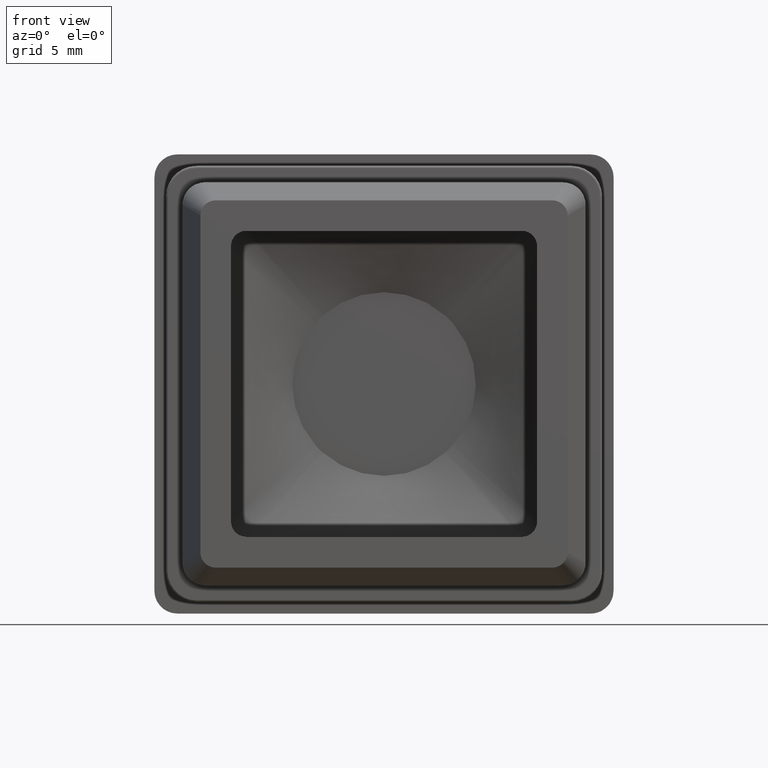
[diagram: clean part render]
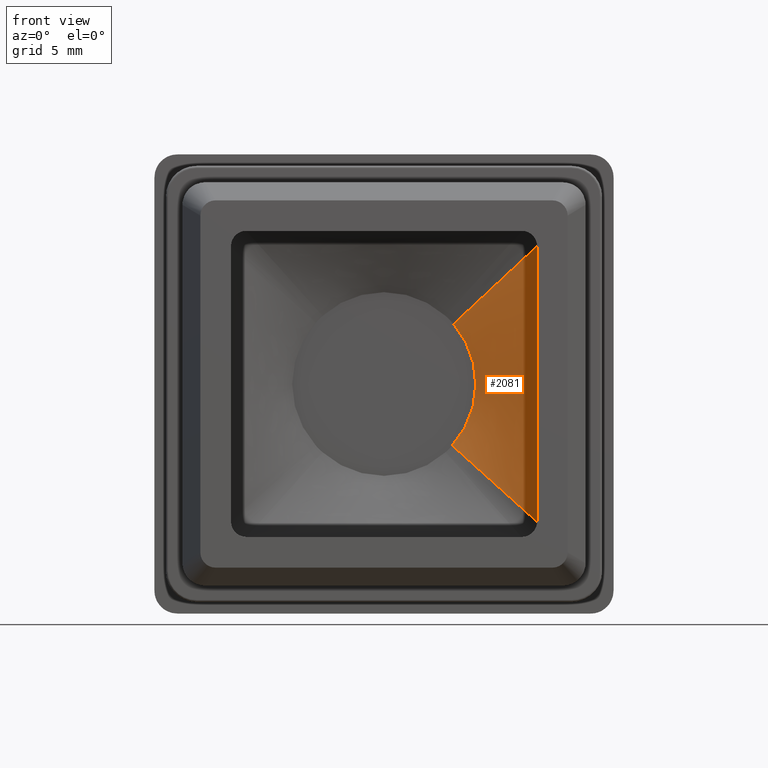
[diagram: same view with one face highlighted and labeled with its STEP entity id]
A machine part, front view. The second image highlights one B-rep face of the part: STEP entity #2081.
In plain terms, the highlighted face is a freeform B-spline surface patch.
Its self-contained STEP definition (entity closure, byte-faithful):
#131=LINE('',#3375,#295);
#132=LINE('',#3421,#296);
#133=LINE('',#3422,#297);
#295=VECTOR('',#2503,7.71728653317443);
#296=VECTOR('',#2504,18.);
#297=VECTOR('',#2505,7.719572682913);
#456=B_SPLINE_SURFACE_WITH_KNOTS('',3,3,((#3376,#3377,#3378,#3379),(#3380,
#3381,#3382,#3383),(#3384,#3385,#3386,#3387),(#3388,#3389,#3390,#3391),
(#3392,#3393,#3394,#3395),(#3396,#3397,#3398,#3399),(#3400,#3401,#3402,
#3403),(#3404,#3405,#3406,#3407),(#3408,#3409,#3410,#3411),(#3412,#3413,
#3414,#3415),(#3416,#3417,#3418,#3419)),.UNSPECIFIED.,.F.,.F.,.F.,(4,1,
1,1,1,1,1,1,4),(4,4),(0.,0.142857142857143,0.285714285714286,0.428571428571429,
0.571428571428571,0.714285714285714,0.857142857142857,0.892857142857143,
1.),(0.,1.),.UNSPECIFIED.);
#477=FACE_OUTER_BOUND('',#613,.T.);
#613=EDGE_LOOP('',(#1422,#1423,#1424,#1425));
#755=CIRCLE('',#2219,6.);
#883=VERTEX_POINT('',#3159);
#884=VERTEX_POINT('',#3161);
#891=VERTEX_POINT('',#3373);
#892=VERTEX_POINT('',#3420);
#1076=EDGE_CURVE('',#883,#884,#755,.T.);
#1090=EDGE_CURVE('',#891,#883,#131,.T.);
#1091=EDGE_CURVE('',#892,#891,#132,.T.);
#1092=EDGE_CURVE('',#892,#884,#133,.T.);
#1422=ORIENTED_EDGE('',*,*,#1091,.F.);
#1423=ORIENTED_EDGE('',*,*,#1092,.T.);
#1424=ORIENTED_EDGE('',*,*,#1076,.F.);
#1425=ORIENTED_EDGE('',*,*,#1090,.F.);
#2081=ADVANCED_FACE('',(#477),#456,.T.);
#2219=AXIS2_PLACEMENT_3D('',#3162,#2484,#2485);
#2484=DIRECTION('center_axis',(0.,-1.,0.));
#2485=DIRECTION('ref_axis',(-1.,0.,0.));
#2503=DIRECTION('',(-0.717899367698879,0.259158447908156,0.646109430928992));
#2504=DIRECTION('',(0.,0.,-1.));
#2505=DIRECTION('',(-0.706941936731429,0.259081698191265,-0.658110759487145));
#3159=CARTESIAN_POINT('',(4.459764877483,2.,-4.0137883897347));
#3161=CARTESIAN_POINT('',(4.54271033680245,2.,3.91966615873192));
#3162=CARTESIAN_POINT('Origin',(0.,2.,0.));
#3373=CARTESIAN_POINT('',(10.,0.,-9.));
#3375=CARTESIAN_POINT('',(10.,0.,-9.));
#3376=CARTESIAN_POINT('Ctrl Pts',(10.,0.,-9.));
#3377=CARTESIAN_POINT('Ctrl Pts',(8.153254959161,0.666666666666667,-7.3379294632449));
#3378=CARTESIAN_POINT('Ctrl Pts',(6.306509918322,1.33333333333333,-5.6758589264898));
#3379=CARTESIAN_POINT('Ctrl Pts',(4.459764877483,2.,-4.0137883897347));
#3380=CARTESIAN_POINT('Ctrl Pts',(10.,0.,-8.92520017491453));
#3381=CARTESIAN_POINT('Ctrl Pts',(8.15948387170275,0.666666666666667,-7.28008693265599));
#3382=CARTESIAN_POINT('Ctrl Pts',(6.32038169932222,1.33333333333333,-5.63656752805771));
#3383=CARTESIAN_POINT('Ctrl Pts',(4.47986557102497,2.,-3.99145428579917));
#3384=CARTESIAN_POINT('Ctrl Pts',(9.99999999999999,0.,-8.10502078298011));
#3385=CARTESIAN_POINT('Ctrl Pts',(8.24874208516268,0.666666666666667,-6.6403894396801));
#3386=CARTESIAN_POINT('Ctrl Pts',(6.49683916491256,1.33333333333333,-5.17485335004419));
#3387=CARTESIAN_POINT('Ctrl Pts',(4.74558125007524,2.,-3.71022200674418));
#3388=CARTESIAN_POINT('Ctrl Pts',(10.,0.,-5.43779510558533));
#3389=CARTESIAN_POINT('Ctrl Pts',(8.48672884844457,0.666666666666666,-4.50534658964904));
#3390=CARTESIAN_POINT('Ctrl Pts',(6.97426178117322,1.33333333333333,-3.57389912800314));
#3391=CARTESIAN_POINT('Ctrl Pts',(5.4609906296178,2.,-2.64145061206685));
#3392=CARTESIAN_POINT('Ctrl Pts',(9.99999999999999,0.,-1.90839547449466));
#3393=CARTESIAN_POINT('Ctrl Pts',(8.66955937575417,0.666666666666669,-1.60953382914608));
#3394=CARTESIAN_POINT('Ctrl Pts',(7.33842610853949,1.33333333333333,-1.31011839173747));
#3395=CARTESIAN_POINT('Ctrl Pts',(6.00798548429367,2.,-1.0112567463889));
#3396=CARTESIAN_POINT('Ctrl Pts',(10.,0.,1.90839547449465));
#3397=CARTESIAN_POINT('Ctrl Pts',(8.67778435976241,0.666666666666665,1.55704826037991));
#3398=CARTESIAN_POINT('Ctrl Pts',(7.35623254166079,1.33333333333333,1.20543900129713));
#3399=CARTESIAN_POINT('Ctrl Pts',(6.03401690142319,2.,0.854091787182384));
#3400=CARTESIAN_POINT('Ctrl Pts',(9.99999999999999,0.,5.43779510558533));
#3401=CARTESIAN_POINT('Ctrl Pts',(8.50867181040493,0.666666666666668,4.45896874726944));
#3402=CARTESIAN_POINT('Ctrl Pts',(7.01714825141245,1.33333333333333,3.48021213362544));
#3403=CARTESIAN_POINT('Ctrl Pts',(5.52582006181739,2.,2.50138577530955));
#3404=CARTESIAN_POINT('Ctrl Pts',(10.,0.,7.43821436363142));
#3405=CARTESIAN_POINT('Ctrl Pts',(8.33539862369159,0.666666666666666,6.06697988435545));
#3406=CARTESIAN_POINT('Ctrl Pts',(6.67117878534489,1.33333333333333,4.69568952663016));
#3407=CARTESIAN_POINT('Ctrl Pts',(5.00657740903649,2.,3.3244550473542));
#3408=CARTESIAN_POINT('Ctrl Pts',(9.99999999999999,0.,8.61763290293912));
#3409=CARTESIAN_POINT('Ctrl Pts',(8.22178667346306,0.666666666666667,7.00530059863648));
#3410=CARTESIAN_POINT('Ctrl Pts',(6.44333665619564,1.33333333333333,5.39304767072326));
#3411=CARTESIAN_POINT('Ctrl Pts',(4.66512332965871,2.,3.78071536642062));
#3412=CARTESIAN_POINT('Ctrl Pts',(10.,0.,8.9439001311859));
#3413=CARTESIAN_POINT('Ctrl Pts',(8.18653376663758,0.666666666666666,7.2622804350882));
#3414=CARTESIAN_POINT('Ctrl Pts',(6.3738256596392,1.33333333333333,5.58083138295792));
#3415=CARTESIAN_POINT('Ctrl Pts',(4.56035942627678,2.,3.89921168686022));
#3416=CARTESIAN_POINT('Ctrl Pts',(10.,0.,9.));
#3417=CARTESIAN_POINT('Ctrl Pts',(8.18090344560081,0.666666666666667,7.30655538624397));
#3418=CARTESIAN_POINT('Ctrl Pts',(6.36180689120163,1.33333333333333,5.61311077248794));
#3419=CARTESIAN_POINT('Ctrl Pts',(4.54271033680245,2.,3.91966615873192));
#3420=CARTESIAN_POINT('',(10.,0.,9.));
#3421=CARTESIAN_POINT('',(10.,0.,-9.));
#3422=CARTESIAN_POINT('',(10.,0.,9.));